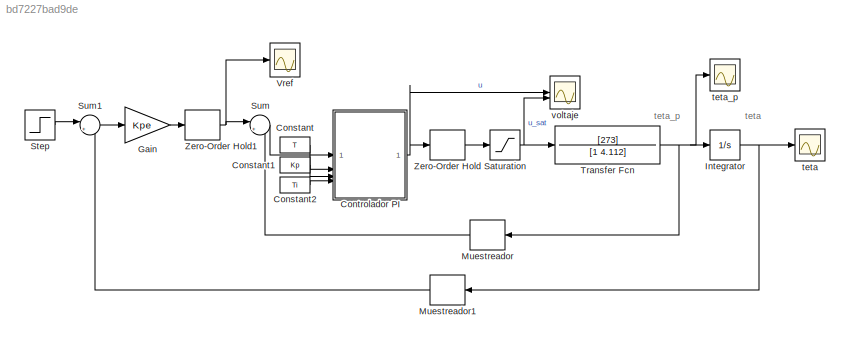
MODEL slx_bd7227bad9de
KIND model
CONFIG AbsTol = auto
CONFIG EnableMultiTasking = off
CONFIG FixedStep = auto
CONFIG MaxStep = auto
CONFIG MinStep = auto
CONFIG RelTol = 1e-3
CONFIG SampleTimeConstraint = Unconstrained
CONFIG SolverName = VariableStepAuto
CONFIG StartTime = 0.0
CONFIG StopTime = 6
BLOCK [Constant] Constant
  Value = T
BLOCK [Constant] Constant1
  Value = Kp
BLOCK [Constant] Constant2
  Value = Ti
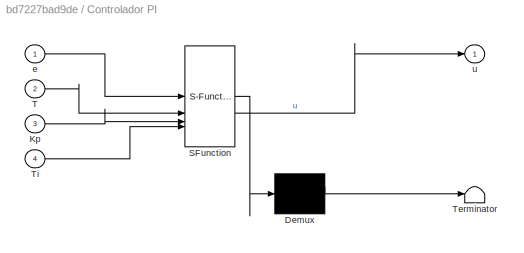
BLOCK [SubSystem] Controlador PI
  ErrorFcn = Stateflow.Translate.translate
  PermitHierarchicalResolution = ExplicitOnly
  SFBlockType = MATLAB Function
  SystemSampleTime = T
  TreatAsAtomicUnit = on
BLOCK [Demux] Controlador PI/ Demux 
  Outputs = 1
BLOCK [S-Function] Controlador PI/ SFunction 
  EnableBusSupport = on
  FunctionName = sf_sfun
  PortCounts = [4 2]
  SFcnIsStateOwnerBlock = off
  SFunctionDeploymentMode = off
  Tag = Stateflow S-Function 2
BLOCK [Terminator] Controlador PI/ Terminator 
BLOCK [Inport] Controlador PI/Kp
  Port = 3
BLOCK [Inport] Controlador PI/T
  Port = 2
BLOCK [Inport] Controlador PI/Ti
  Port = 4
BLOCK [Inport] Controlador PI/e
BLOCK [Outport] Controlador PI/u
BLOCK [Gain] Gain
  Gain = Kpe
BLOCK [Integrator] Integrator
BLOCK [ZeroOrderHold] Muestreador
  SampleTime = T
BLOCK [ZeroOrderHold] Muestreador1
  SampleTime = Te
BLOCK [Saturate] Saturation
  LowerLimit = -3
  UpperLimit = 3
BLOCK [Step] Step
  After = 100
  SampleTime = 0
  Time = 0
BLOCK [Sum] Sum
  Inputs = |+-
BLOCK [Sum] Sum1
  Inputs = |+-
BLOCK [TransferFcn] Transfer Fcn
  Denominator = [1 4.112]
  Numerator = [273]
BLOCK [Scope] Vref
  Floating = off
  NumInputPorts = 1
  ScopeSpecificationString = Simulink.scopes.TimeScopeBlockCfg('CurrentConfiguration', extmgr.ConfigurationSet(extmgr.Configuration('Core','General UI',true),extmgr.Configuration('Core','Source UI',true),extmgr.Configuration('Sources','WiredSimulink',true,'DataLoggingVariableName','ScopeData2'),extmgr.Configuration('Visuals','Time Domain',true,'SerializedDisplays',{struct('MinYLimReal','-15.22682','MaxYLimReal','137.24742','Y...<+1503ch>
BLOCK [ZeroOrderHold] Zero-Order Hold
  SampleTime = T
BLOCK [ZeroOrderHold] Zero-Order Hold1
  SampleTime = Te
BLOCK [Scope] teta
  Floating = off
  NumInputPorts = 1
  ScopeSpecificationString = Simulink.scopes.TimeScopeBlockCfg('CurrentConfiguration', extmgr.ConfigurationSet(extmgr.Configuration('Core','General UI',true),extmgr.Configuration('Core','Source UI',true),extmgr.Configuration('Sources','WiredSimulink',true,'DataLoggingVariableName','ScopeData1'),extmgr.Configuration('Visuals','Time Domain',true,'SerializedDisplays',{struct('MinYLimReal','-12.49807','MaxYLimReal','112.48261','Y...<+1833ch>
BLOCK [Scope] teta_p
  Floating = off
  NumInputPorts = 1
  ScopeSpecificationString = Simulink.scopes.TimeScopeBlockCfg('CurrentConfiguration', extmgr.ConfigurationSet(extmgr.Configuration('Core','General UI',true),extmgr.Configuration('Core','Source UI',true),extmgr.Configuration('Sources','WiredSimulink',true,'DataLoggingVariableName','ScopeData1'),extmgr.Configuration('Visuals','Time Domain',true,'SerializedDisplays',{struct('MinYLimReal','-13.87745','MaxYLimReal','124.89703','Y...<+1809ch>
BLOCK [Scope] voltaje
  Floating = off
  NumInputPorts = 2
  ScopeSpecificationString = Simulink.scopes.TimeScopeBlockCfg('CurrentConfiguration', extmgr.ConfigurationSet(extmgr.Configuration('Core','General UI',true),extmgr.Configuration('Core','Source UI',true),extmgr.Configuration('Sources','WiredSimulink',true,'DataLoggingVariableName','ScopeData1'),extmgr.Configuration('Visuals','Time Domain',true,'SerializedDisplays',{struct('MinYLimReal','-0.32147','MaxYLimReal','2.89538','YLab...<+1486ch>
ANNOTATION (root): teta
ANNOTATION (root): teta_p
LINE Constant1:1 -> Controlador PI:3
LINE Constant2:1 -> Controlador PI:4
LINE Constant:1 -> Controlador PI:2
NET Controlador PI:1 -> Zero-Order Hold:1, voltaje:1
LINE Gain:1 -> Zero-Order Hold1:1
NET Integrator:1 -> Muestreador1:1, teta:1
LINE Muestreador1:1 -> Sum1:2
LINE Muestreador:1 -> Sum:2
NET Saturation:1 -> Transfer Fcn:1, voltaje:2
LINE Step:1 -> Sum1:1
LINE Sum1:1 -> Gain:1
LINE Sum:1 -> Controlador PI:1
NET Transfer Fcn:1 -> Integrator:1, Muestreador:1, teta_p:1
NET Zero-Order Hold1:1 -> Sum:1, Vref:1
LINE Zero-Order Hold:1 -> Saturation:1
note: NET lines group one-source signal fan-out (src -> all destinations, sorted); 1:1 wires keep LINE
CHART Controlador PI states=1 transitions=1
  STATE_LABEL 'eML_blk_kernel()'
  STATE_LABEL 'SCRIPT:\nfunction u = fcn(e,T, Kp, Ti)\n\npersistent I_ant;\n\nif isempty(I_ant),\n    I_ant=0;\nend;\n\nI = I_ant + e*T;\nu = Kp*(e+ (1/Ti)*I);\n\nI_ant = I;\n\n'
CHART  states=0 transitions=0
